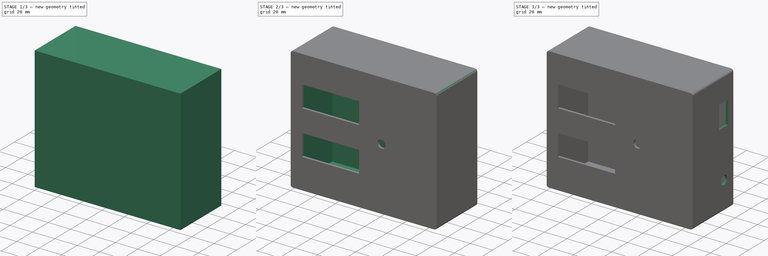
[diagram: build sequence overview — one tinted view per stage of 3, left to right]
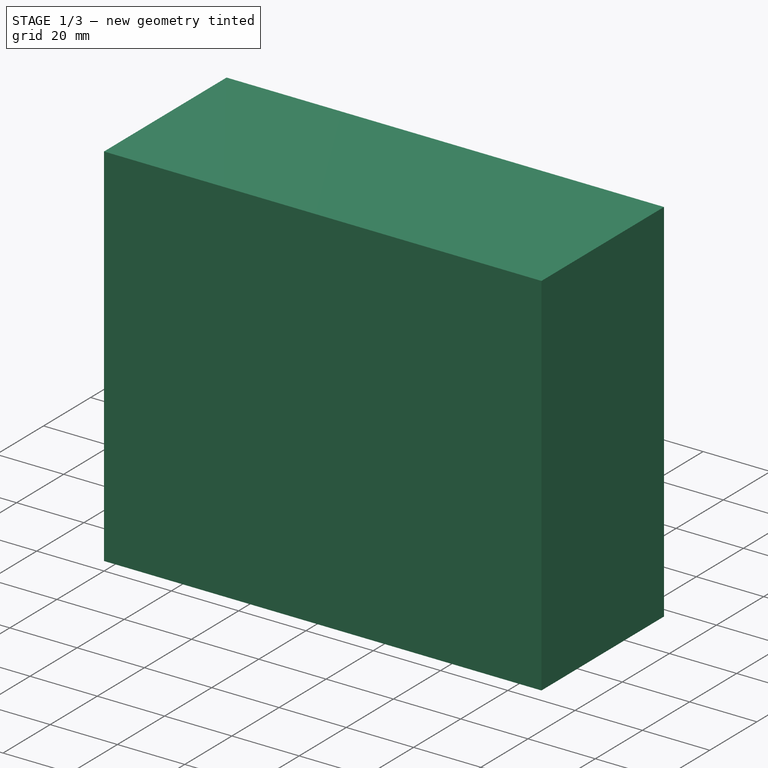
[diagram: stage 1 of 3 — iso view after this stage's code; geometry added in this stage tinted green]
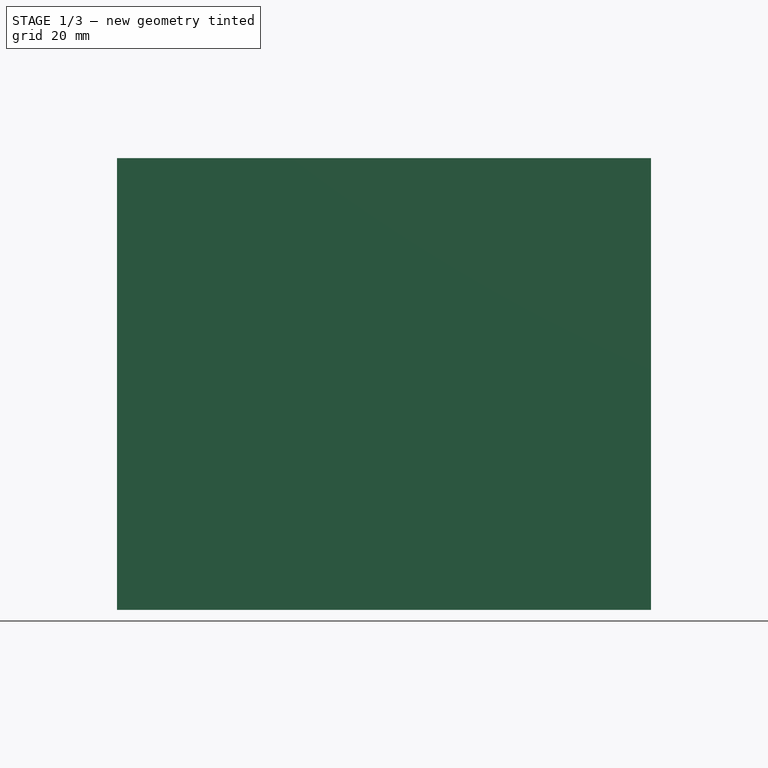
[diagram: stage 1 of 3 — front view after this stage's code; geometry added in this stage tinted green]
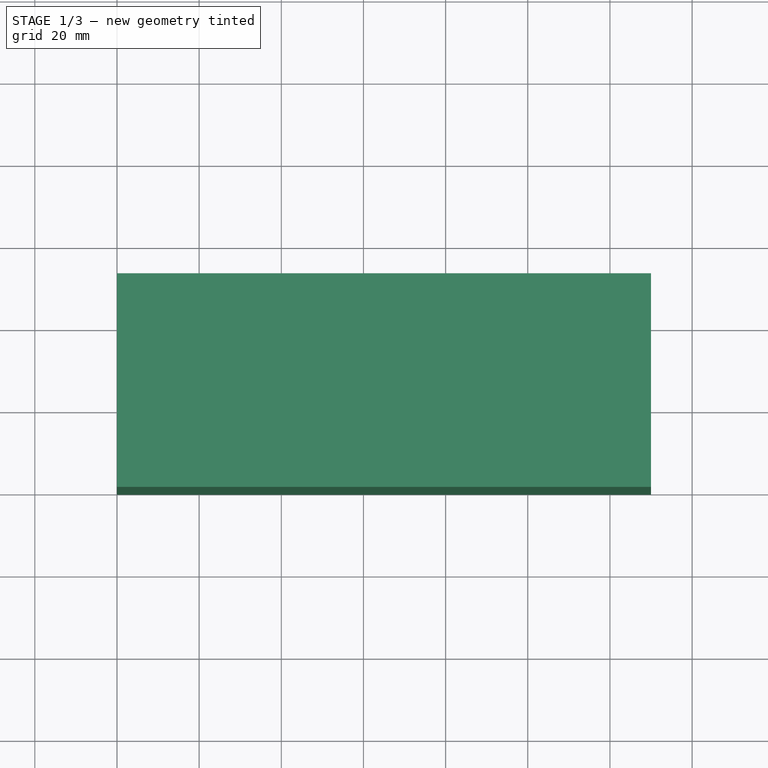
[diagram: stage 1 of 3 — top view after this stage's code; geometry added in this stage tinted green]
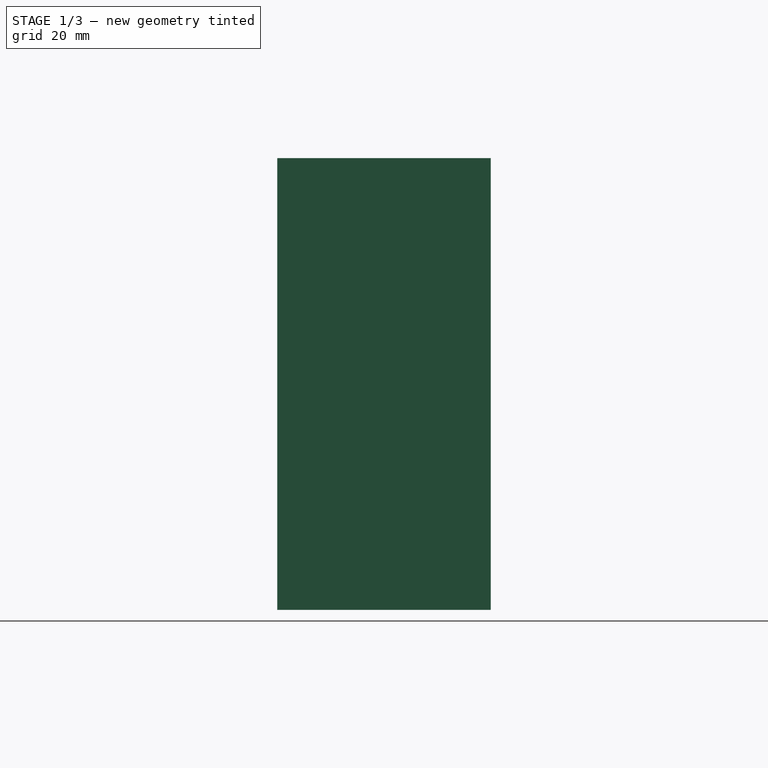
[diagram: stage 1 of 3 — right view after this stage's code; geometry added in this stage tinted green]
FCSTD DOCUMENT  (FreeCAD 1.0R39285 (Git))
Label: Labornetzteil3D
License: All rights reserved
LicenseURL: https://en.wikipedia.org/wiki/All_rights_reserved
objects: Sketcher::SketchObject×6, PartDesign::Pad×3, PartDesign::Plane×3, PartDesign::Pocket×3, PartDesign::Body×2, PartDesign::Thickness×1, PartDesign::Fillet×1, PartDesign::FeatureBase×1
note: 43 computed .brp shape members not serialized (recipe doc carries the construction recipe); baked Part::Feature solids carry a one-line shape summary decoded from their .brp

FEATURE [Sketcher::SketchObject] Sketch  label="Grundplatte"
  ArcFitTolerance = 1e-06
  AttachmentSupport = -> [XY_Plane]
  FullyConstrained = true
  MakeInternals = false
  MapMode = 5
  sketch-geometry (4):
    g0: LineSegment StartX=0 StartY=0 StartZ=0 EndX=130 EndY=0 EndZ=0
    g1: LineSegment StartX=130 StartY=0 StartZ=0 EndX=130 EndY=52 EndZ=0
    g2: LineSegment StartX=130 StartY=52 StartZ=0 EndX=0 EndY=52 EndZ=0
    g3: LineSegment StartX=0 StartY=52 StartZ=0 EndX=0 EndY=0 EndZ=0
  constraints (11):
    c: Coincident(g0,g1)
    c: Coincident(g1,g2)
    c: Coincident(g2,g3)
    c: Coincident(g3,g0)
    c: Horizontal(g0)
    c: Horizontal(g2)
    c: Vertical(g1)
    c: Vertical(g3)
    c: Distance(g1,g3) = 130
    c: Distance(g0,g2) = 52
    c: Coincident(g0,g-1)
FEATURE [PartDesign::Pad] Pad  label="Grundkörper"
  Direction = (0,0,1)
  Length = 110
  Length2 = 10
  Profile = -> Sketch
  ReferenceAxis = -> Sketch [N_Axis]
  Refine = true
  Suppressed = false
  Type = 0
FEATURE [PartDesign::Body] Body  label="Base"
  AllowCompound = false
  Group = -> [Sketch,Pad,Thickness,Fillet,DatumPlane,Sketch001,Pad001,Sketch002,Pocket,Sketch003,Pocket001]
  Origin = -> Origin
  Tip = -> Pocket001
FEATURE [PartDesign::Plane] DatumPlane001
  AttachmentSupport = -> [Pocket001]
  Length = 181.53
  MapMode = 5
  Placement = pos=(0,4,-9e-16) rot=(1,0,0;1.5708rad)
  ResizeMode = 0
  Width = 161.53
FEATURE [Sketcher::SketchObject] Sketch004
  ArcFitTolerance = 1e-06
  AttachmentSupport = -> [DatumPlane001]
  FullyConstrained = true
  MakeInternals = false
  MapMode = 5
  Placement = pos=(0,4,-9e-16) rot=(1,0,0;1.5708rad)
  sketch-geometry (4):
    g0: LineSegment StartX=2 StartY=108 StartZ=0 EndX=2 EndY=2 EndZ=0
    g1: LineSegment StartX=2 StartY=2 StartZ=0 EndX=128 EndY=2 EndZ=0
    g2: LineSegment StartX=128 StartY=2 StartZ=0 EndX=128 EndY=108 EndZ=0
    g3: LineSegment StartX=128 StartY=108 StartZ=0 EndX=2 EndY=108 EndZ=0
  constraints (12):
    c: Coincident(g0,g1)
    c: Coincident(g1,g2)
    c: Coincident(g2,g3)
    c: Coincident(g3,g0)
    c: Vertical(g0)
    c: Vertical(g2)
    c: Horizontal(g1)
    c: Horizontal(g3)
    c: DistanceX(g-1,g0) = 2
    c: DistanceY(g-1,g0) = 2
    c: DistanceX(g3,g3) = 126
    c: DistanceY(g2,g2) = 106
FEATURE [PartDesign::FeatureBase] BaseFeature
  BaseFeature = -> DatumPlane001
  Suppressed = false
FEATURE [PartDesign::Pad] Pad002
  BaseFeature = -> BaseFeature
  Direction = (1,1,1)
  Length = 2
  Length2 = 10
  Profile = -> Sketch004
  ReferenceAxis = -> Sketch004 [N_Axis]
  Refine = true
  Suppressed = false
  Type = 0
FEATURE [PartDesign::Plane] DatumPlane002
  AttachmentSupport = -> [Pad002]
  Length = 181.53
  MapMode = 5
  Placement = pos=(0,2.44e-14,0) rot=(1,0,0;1.5708rad)
  ResizeMode = 0
  Width = 161.53
FEATURE [Sketcher::SketchObject] Sketch005
  ArcFitTolerance = 1e-06
  AttachmentSupport = -> [DatumPlane002]
  FullyConstrained = true
  MakeInternals = false
  MapMode = 5
  Placement = pos=(0,2.44e-14,0) rot=(1,0,0;1.5708rad)
  sketch-geometry (9):
    g0: LineSegment StartX=10 StartY=27 StartZ=0 EndX=61 EndY=27 EndZ=0
    g1: LineSegment StartX=61 StartY=27 StartZ=0 EndX=61 EndY=46.2 EndZ=0
    g2: LineSegment StartX=61 StartY=46.2 StartZ=0 EndX=10 EndY=46.2 EndZ=0
    g3: LineSegment StartX=10 StartY=46.2 StartZ=0 EndX=10 EndY=27 EndZ=0
    g4: LineSegment StartX=10 StartY=85.4 StartZ=0 EndX=10 EndY=66.2 EndZ=0
    g5: LineSegment StartX=10 StartY=66.2 StartZ=0 EndX=61 EndY=66.2 EndZ=0
    g6: LineSegment StartX=61 StartY=66.2 StartZ=0 EndX=61 EndY=85.4 EndZ=0
    g7: LineSegment StartX=61 StartY=85.4 StartZ=0 EndX=10 EndY=85.4 EndZ=0
    g8: Circle CenterX=96 CenterY=56.2 CenterZ=0 NormalX=0 NormalY=0 NormalZ=1 AngleXU=0 Radius=3.6
  constraints (27):
    c: Coincident(g0,g1)
    c: Coincident(g1,g2)
    c: Coincident(g2,g3)
    c: Coincident(g3,g0)
    c: Horizontal(g0)
    c: Horizontal(g2)
    c: Vertical(g1)
    c: Vertical(g3)
    c: DistanceY(g-1,g0) = 27
    c: DistanceY(g3,g3) = 19.2
    c: DistanceX(g-1,g0) = 10
    c: Coincident(g4,g5)
    c: Coincident(g5,g6)
    c: Coincident(g6,g7)
    c: Coincident(g7,g4)
    c: Vertical(g4)
    c: Vertical(g6)
    c: Horizontal(g5)
    c: Horizontal(g7)
    c: DistanceX(g0,g0) = 51
    c: DistanceX(g5,g5) = 51
    c: DistanceY(g4,g4) = 19.2
    c: DistanceX(g2,g4) = 0
    c: DistanceY(g1,g5) = 20
    c: Diameter(g8) = 7.2
    c: DistanceY(g1,g8) = 10
    c: DistanceX(g5,g8) = 35
FEATURE [PartDesign::Pocket] Pocket002
  BaseFeature = -> Pad002
  Direction = (1,1,1)
  Length = 2
  Length2 = 5
  Profile = -> Sketch005
  ReferenceAxis = -> Sketch005 [N_Axis]
  Refine = true
  Suppressed = false
  Type = 0
FEATURE [PartDesign::Body] Body001  label="Blende"
  AllowCompound = false
  BaseFeature = -> DatumPlane001
  Group = -> [BaseFeature,Sketch004,Pad002,DatumPlane002,Sketch005,Pocket002]
  Origin = -> Origin001
  Tip = -> Pocket002
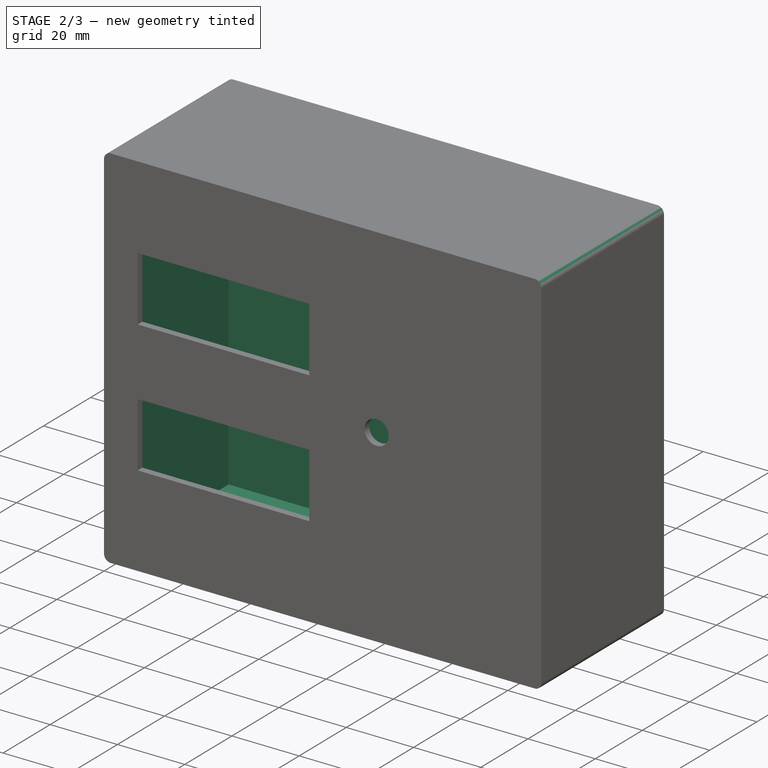
[diagram: stage 2 of 3 — iso view after this stage's code; geometry added in this stage tinted green]
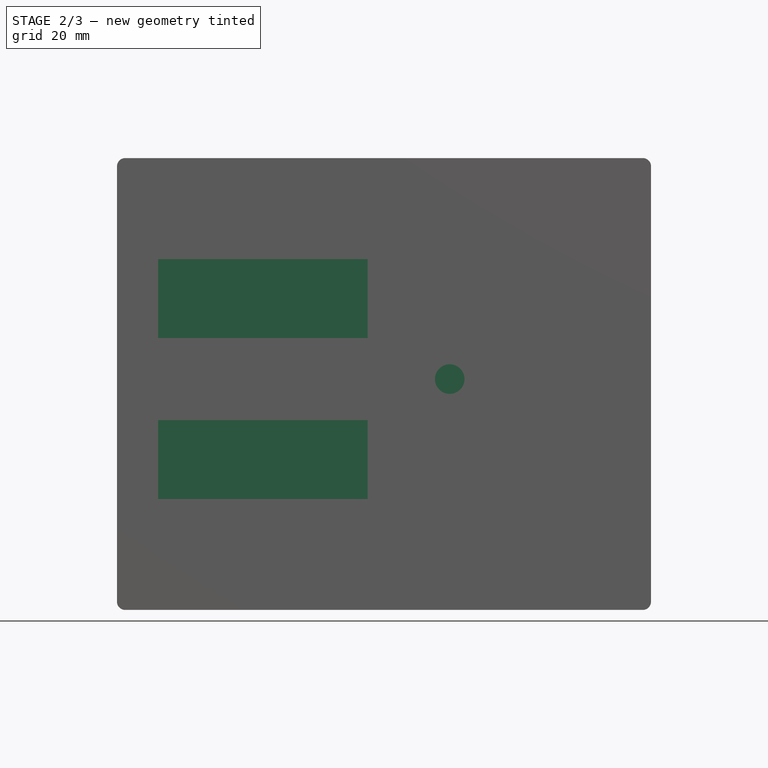
[diagram: stage 2 of 3 — front view after this stage's code; geometry added in this stage tinted green]
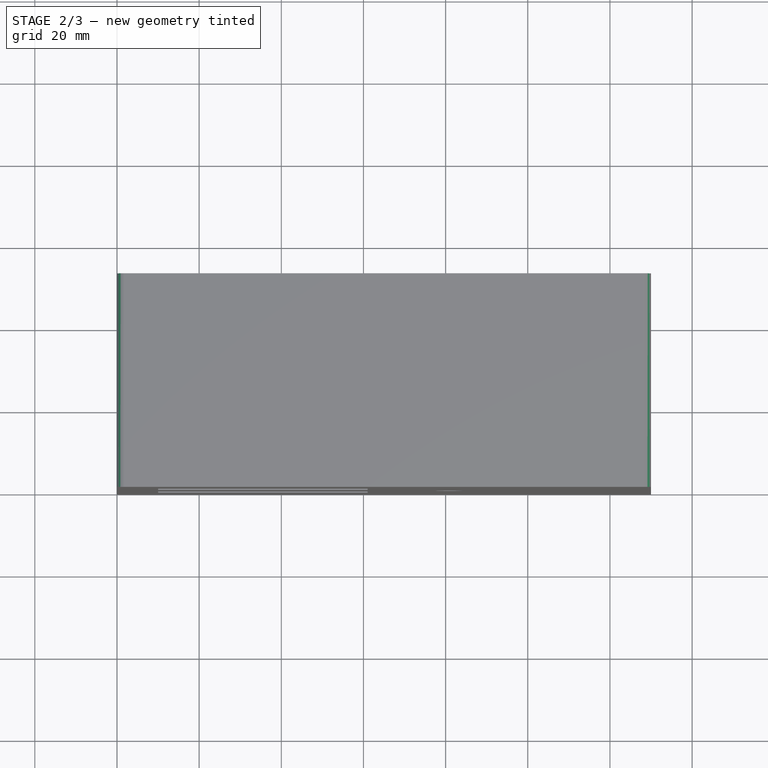
[diagram: stage 2 of 3 — top view after this stage's code; geometry added in this stage tinted green]
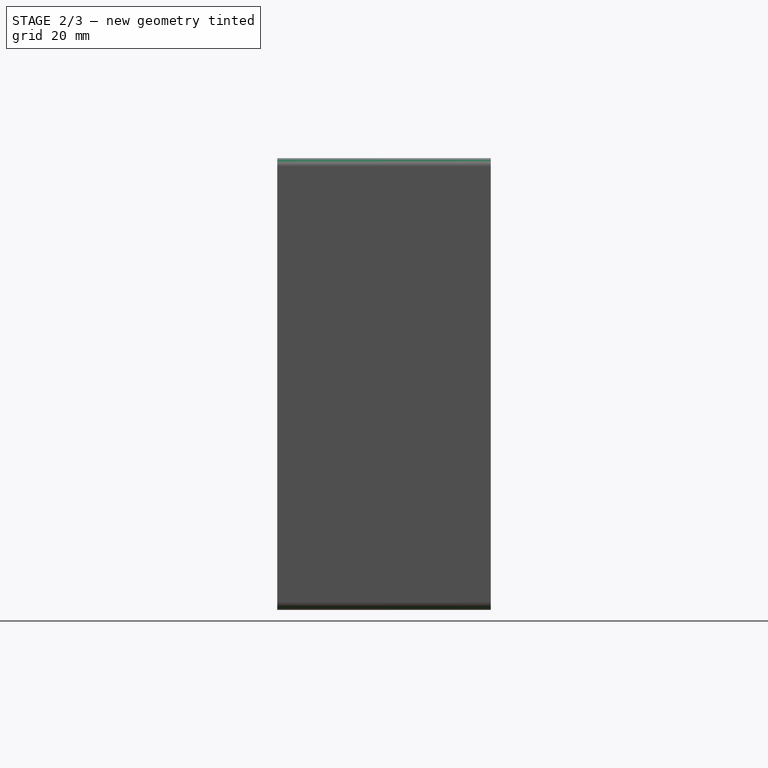
[diagram: stage 2 of 3 — right view after this stage's code; geometry added in this stage tinted green]
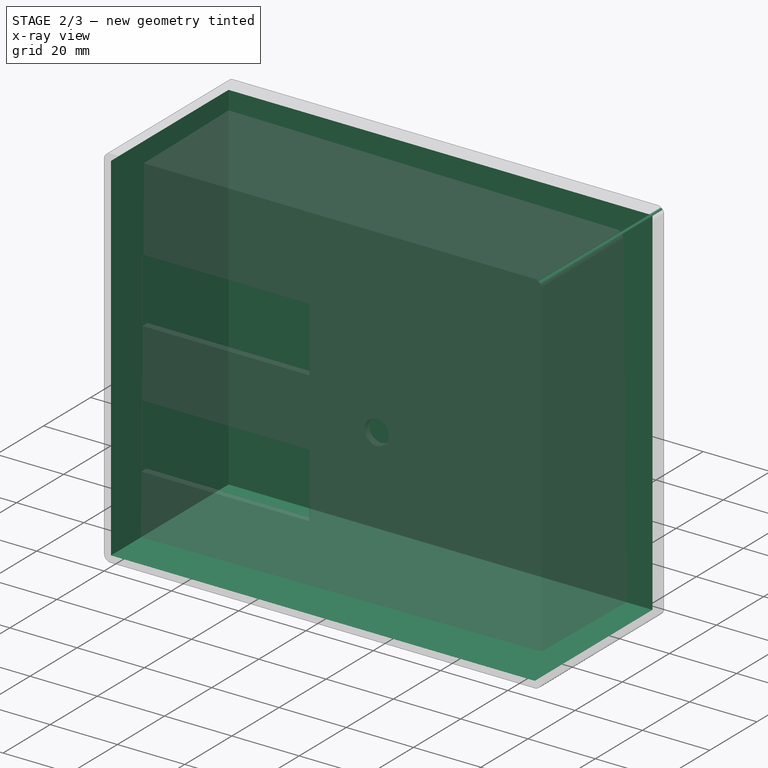
[diagram: stage 2 of 3 — x-ray composite at the iso view; earlier geometry ghosted, this stage's added geometry solid]
FEATURE [PartDesign::Thickness] Thickness
  Base = -> Pad [Face1]
  BaseFeature = -> Pad
  Intersection = false
  Join = 0
  Mode = 0
  Refine = true
  Reversed = true
  SupportTransform = false
  Suppressed = false
  Value = 2
FEATURE [PartDesign::Fillet] Fillet
  Base = -> Thickness [Edge9,Edge3,Edge10,Edge4]
  BaseFeature = -> Thickness
  Radius = 2
  Refine = true
  SupportTransform = false
  Suppressed = false
  UseAllEdges = false
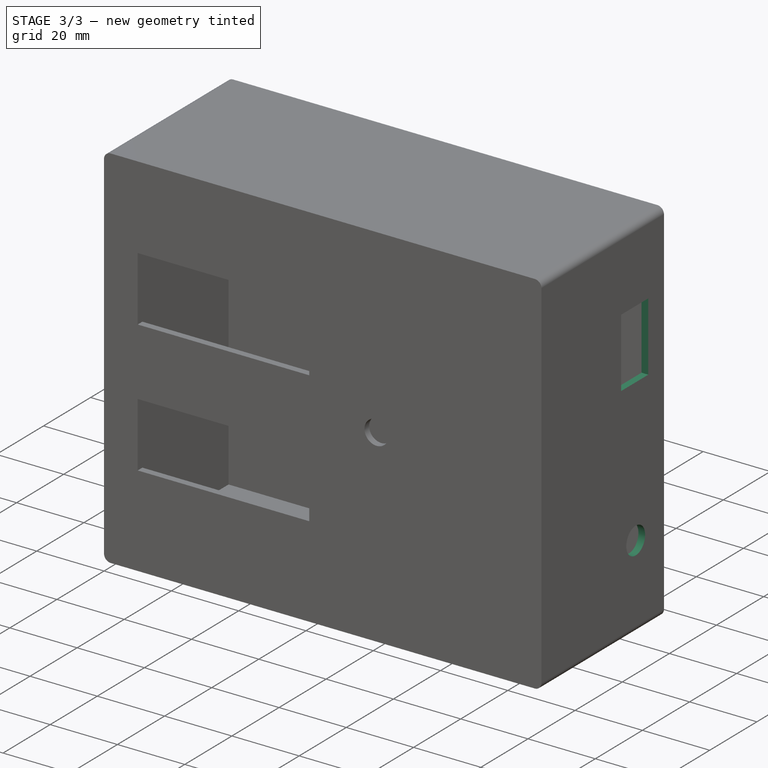
[diagram: stage 3 of 3 — iso view after this stage's code; geometry added in this stage tinted green]
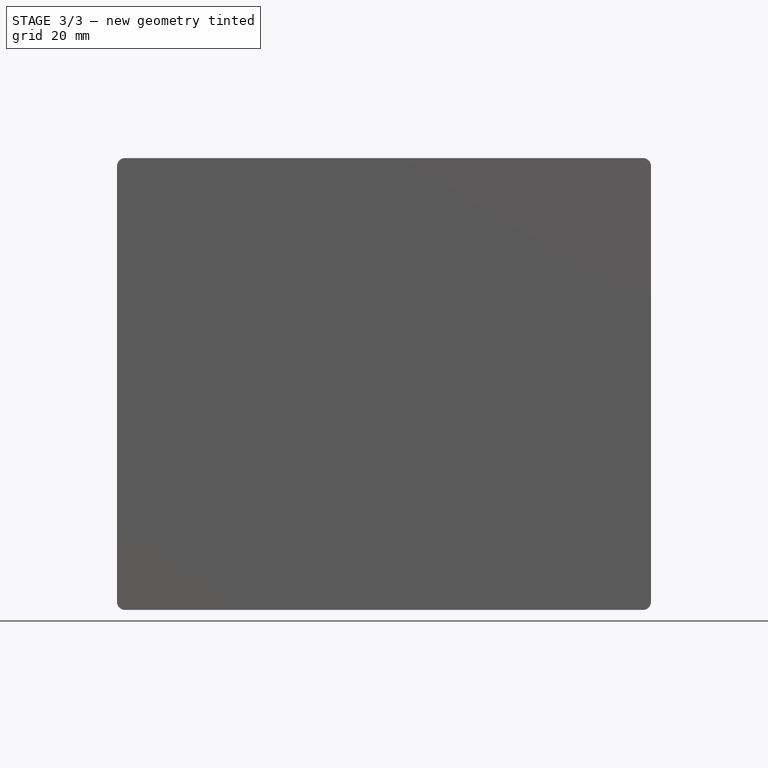
[diagram: stage 3 of 3 — front view after this stage's code; geometry added in this stage tinted green]
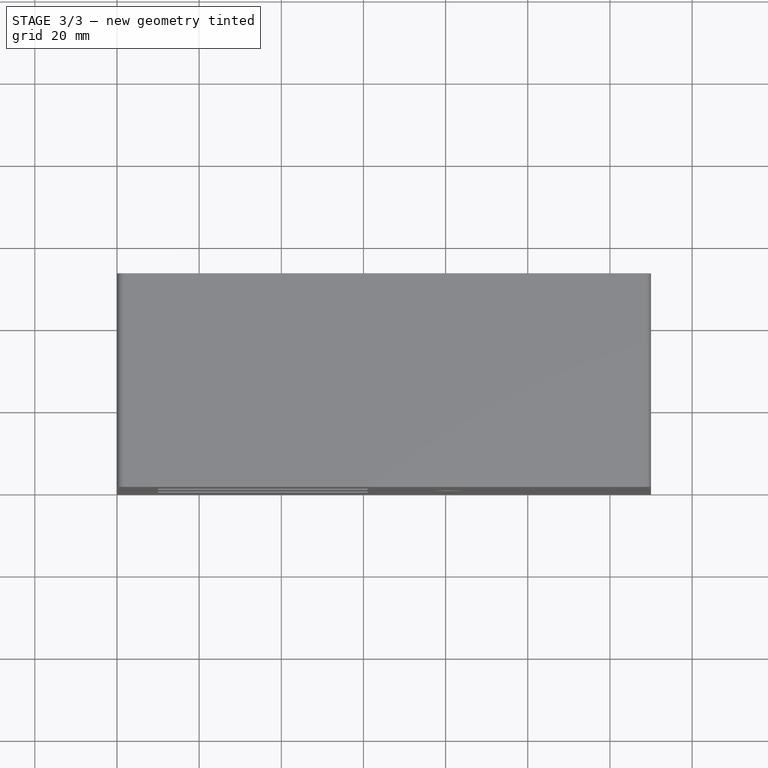
[diagram: stage 3 of 3 — top view after this stage's code; geometry added in this stage tinted green]
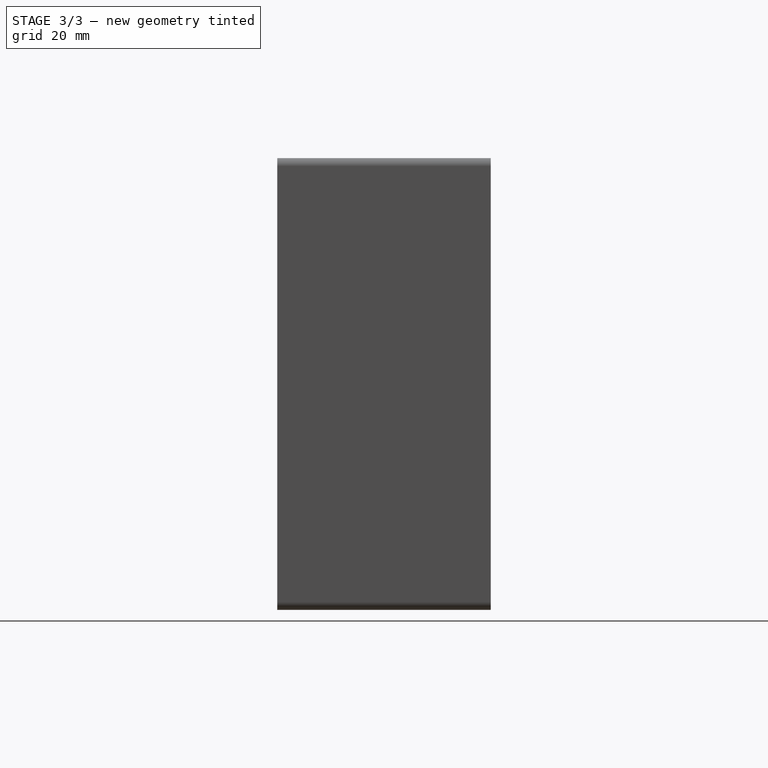
[diagram: stage 3 of 3 — right view after this stage's code; geometry added in this stage tinted green]
FEATURE [PartDesign::Plane] DatumPlane
  AttachmentOffset = pos=(0,0,46) rot=(0,0,1;0rad)
  AttachmentSupport = -> [Fillet]
  Length = 60
  MapMode = 5
  Placement = pos=(0,4,1.02e-14) rot=(1,0,0;1.5708rad)
  ResizeMode = 0
  Width = 60
FEATURE [Sketcher::SketchObject] Sketch001
  ArcFitTolerance = 1e-06
  AttachmentSupport = -> [DatumPlane]
  FullyConstrained = true
  MakeInternals = false
  MapMode = 5
  Placement = pos=(0,4,1.02e-14) rot=(1,0,0;1.5708rad)
  sketch-geometry (9):
    g0: GeomPoint X=2 Y=2 Z=0
    g1: LineSegment StartX=2 StartY=2 StartZ=0 EndX=7 EndY=2 EndZ=0
    g2: LineSegment StartX=7 StartY=2 StartZ=0 EndX=7 EndY=108 EndZ=0
    g3: LineSegment StartX=7 StartY=108 StartZ=0 EndX=2 EndY=108 EndZ=0
    g4: LineSegment StartX=2 StartY=108 StartZ=0 EndX=2 EndY=2 EndZ=0
    g5: LineSegment StartX=123 StartY=108 StartZ=0 EndX=123 EndY=2 EndZ=0
    g6: LineSegment StartX=123 StartY=2 StartZ=0 EndX=128 EndY=2 EndZ=0
    g7: LineSegment StartX=128 StartY=2 StartZ=0 EndX=128 EndY=108 EndZ=0
    g8: LineSegment StartX=128 StartY=108 StartZ=0 EndX=123 EndY=108 EndZ=0
  constraints (25):
    c: DistanceY(g-1,g0) = 2
    c: DistanceX(g-1,g0) = 2
    c: Coincident(g1,g2)
    c: Coincident(g2,g3)
    c: Coincident(g3,g4)
    c: Coincident(g4,g1)
    c: Horizontal(g1)
    c: Horizontal(g3)
    c: Vertical(g2)
    c: Vertical(g4)
    c: Distance(g2,g4) = 5
    c: Distance(g1,g3) = 106
    c: Coincident(g1,g0)
    c: Coincident(g5,g6)
    c: Coincident(g6,g7)
    c: Coincident(g7,g8)
    c: Coincident(g8,g5)
    c: Vertical(g5)
    c: Vertical(g7)
    c: Horizontal(g6)
    c: Horizontal(g8)
    c: DistanceX(g8,g8) = 5
    c: DistanceY(g5,g2) = 0
    c: DistanceY(g0,g5) = 0
    c: DistanceX(g-1,g5) = 123
FEATURE [PartDesign::Pad] Pad001
  BaseFeature = -> Fillet
  Direction = (0,-1,2e-16)
  Length = 2
  Length2 = 10
  Profile = -> Sketch001
  ReferenceAxis = -> Sketch001 [N_Axis]
  Refine = true
  Reversed = true
  Suppressed = false
  Type = 0
FEATURE [Sketcher::SketchObject] Sketch002
  ArcFitTolerance = 1e-06
  AttachmentSupport = -> [Pad001]
  FullyConstrained = true
  MakeInternals = false
  MapMode = 5
  Placement = pos=(130,0,0) rot=(0.57735,0.57735,0.57735;2.0944rad)
  sketch-geometry (1):
    g0: Circle CenterX=40 CenterY=25 CenterZ=0 NormalX=0 NormalY=0 NormalZ=1 AngleXU=0 Radius=4
  constraints (3):
    c: Diameter(g0) = 8
    c: DistanceY(g-1,g0) = 25
    c: DistanceX(g-1,g0) = 40
FEATURE [PartDesign::Pocket] Pocket
  BaseFeature = -> Pad001
  Direction = (-1,0,0)
  Length = 2
  Length2 = 5
  Profile = -> Sketch002
  ReferenceAxis = -> Sketch002 [N_Axis]
  Refine = true
  Suppressed = false
  Type = 0
FEATURE [Sketcher::SketchObject] Sketch003
  ArcFitTolerance = 1e-06
  AttachmentSupport = -> [Pocket]
  FullyConstrained = false
  MakeInternals = false
  MapMode = 5
  Placement = pos=(130,0,0) rot=(0.57735,0.57735,0.57735;2.0944rad)
  sketch-geometry (4):
    g0: LineSegment StartX=33.835 StartY=67.5046 StartZ=0 EndX=45.335 EndY=67.5046 EndZ=0
    g1: LineSegment StartX=45.335 StartY=67.5046 StartZ=0 EndX=45.335 EndY=88.0046 EndZ=0
    g2: LineSegment StartX=45.335 StartY=88.0046 StartZ=0 EndX=33.835 EndY=88.0046 EndZ=0
    g3: LineSegment StartX=33.835 StartY=88.0046 StartZ=0 EndX=33.835 EndY=67.5046 EndZ=0
  constraints (10):
    c: Coincident(g0,g1)
    c: Coincident(g1,g2)
    c: Coincident(g2,g3)
    c: Coincident(g3,g0)
    c: Horizontal(g0)
    c: Horizontal(g2)
    c: Vertical(g1)
    c: Vertical(g3)
    c: Distance(g1,g3) = 11.5
    c: Distance(g0,g2) = 20.5
FEATURE [PartDesign::Pocket] Pocket001
  BaseFeature = -> Pocket
  Direction = (-1,0,0)
  Length = 5
  Length2 = 5
  Profile = -> Sketch003
  ReferenceAxis = -> Sketch003 [N_Axis]
  Refine = true
  Suppressed = false
  Type = 0
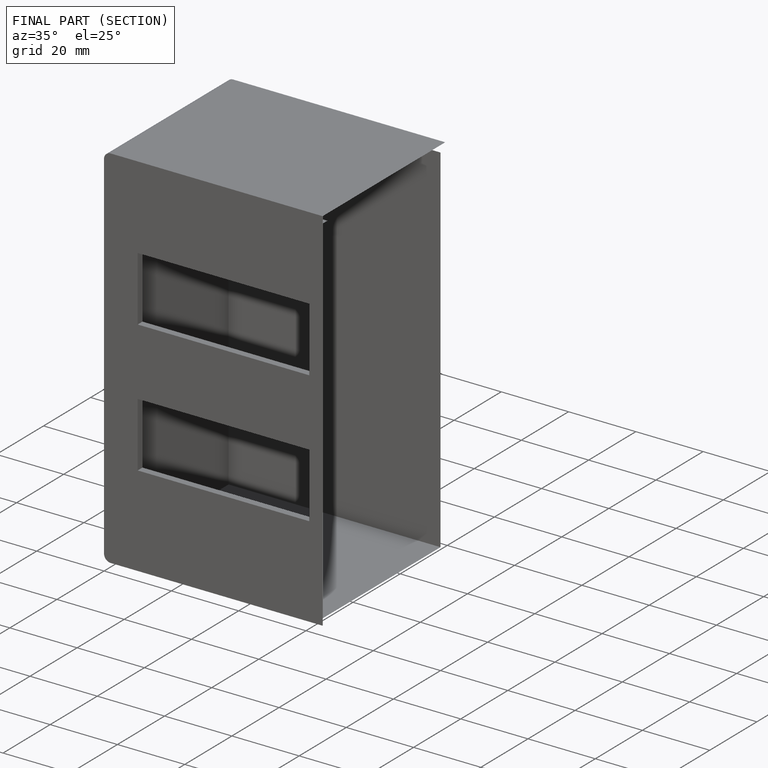
[diagram: finished part — half-section view (interior)]
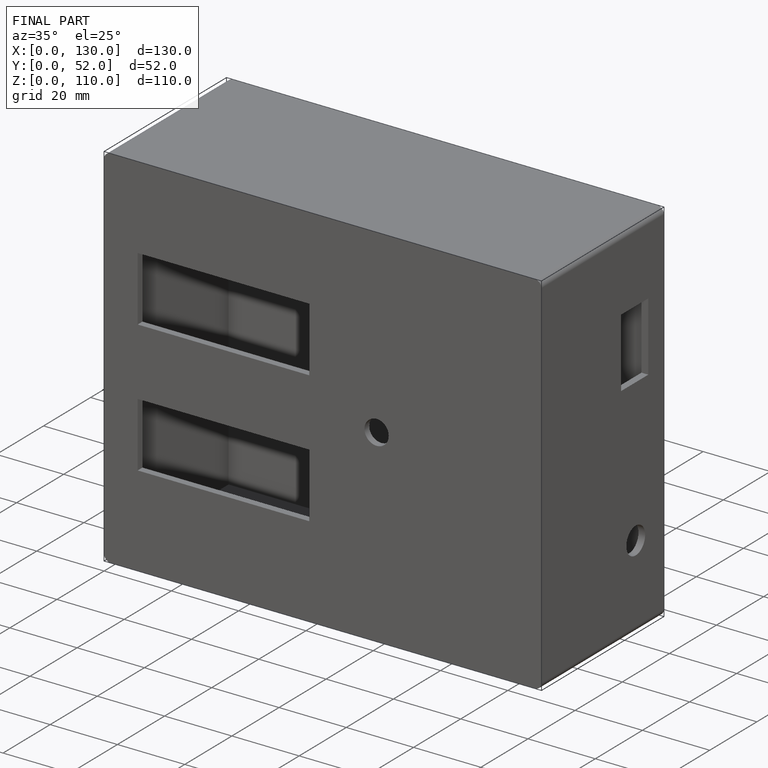
[diagram: finished part — iso view with bounding-box wireframe]
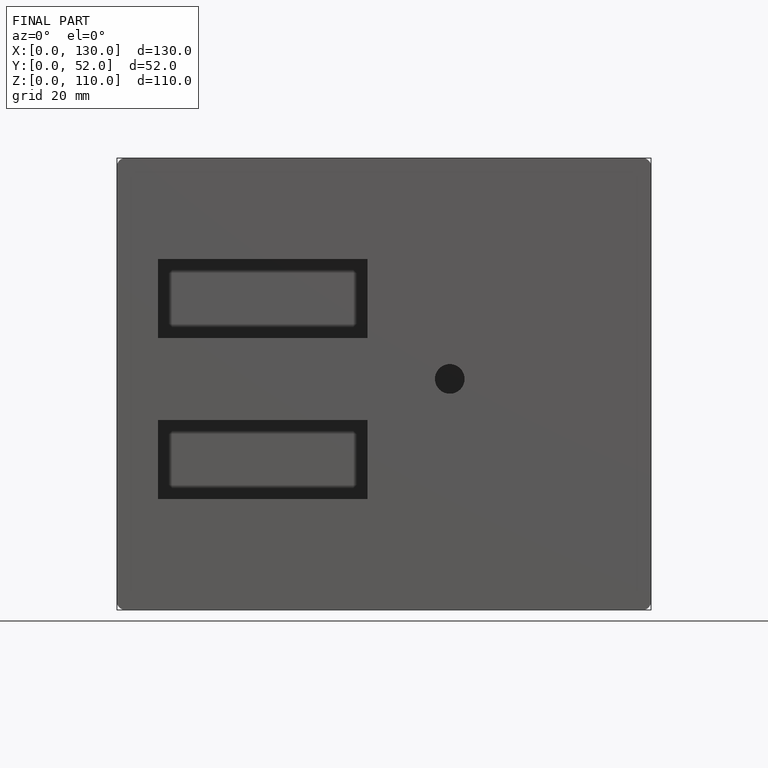
[diagram: finished part — front view with bounding-box wireframe]
